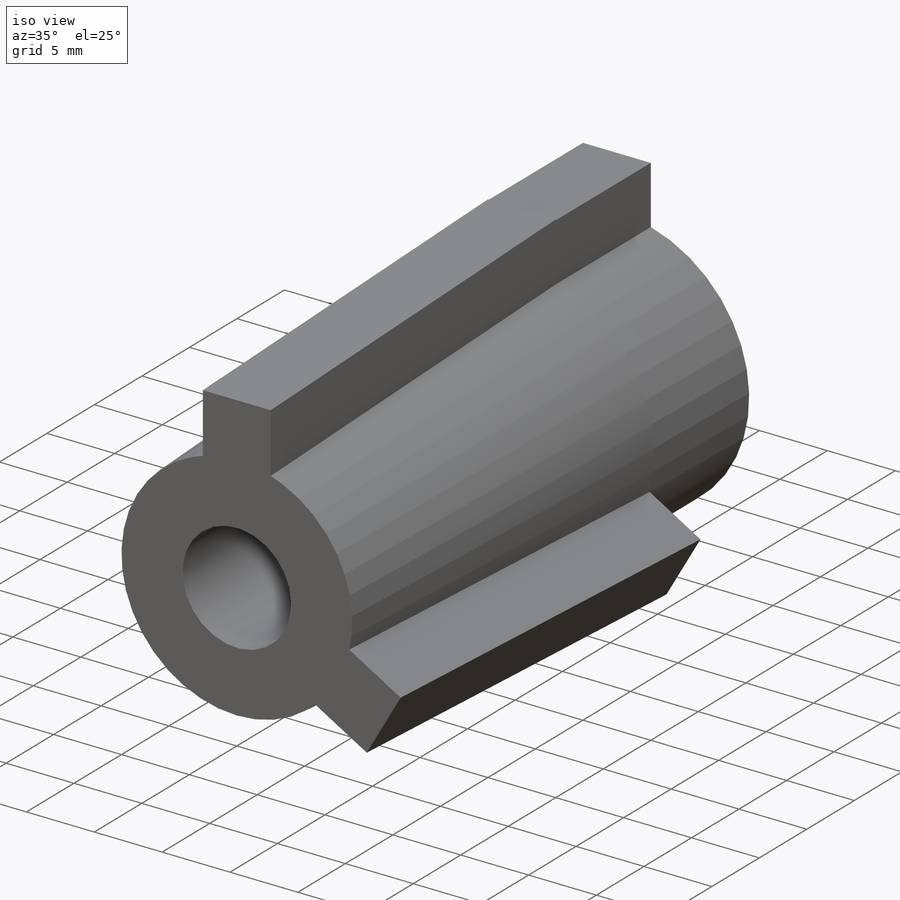
[diagram: iso view]
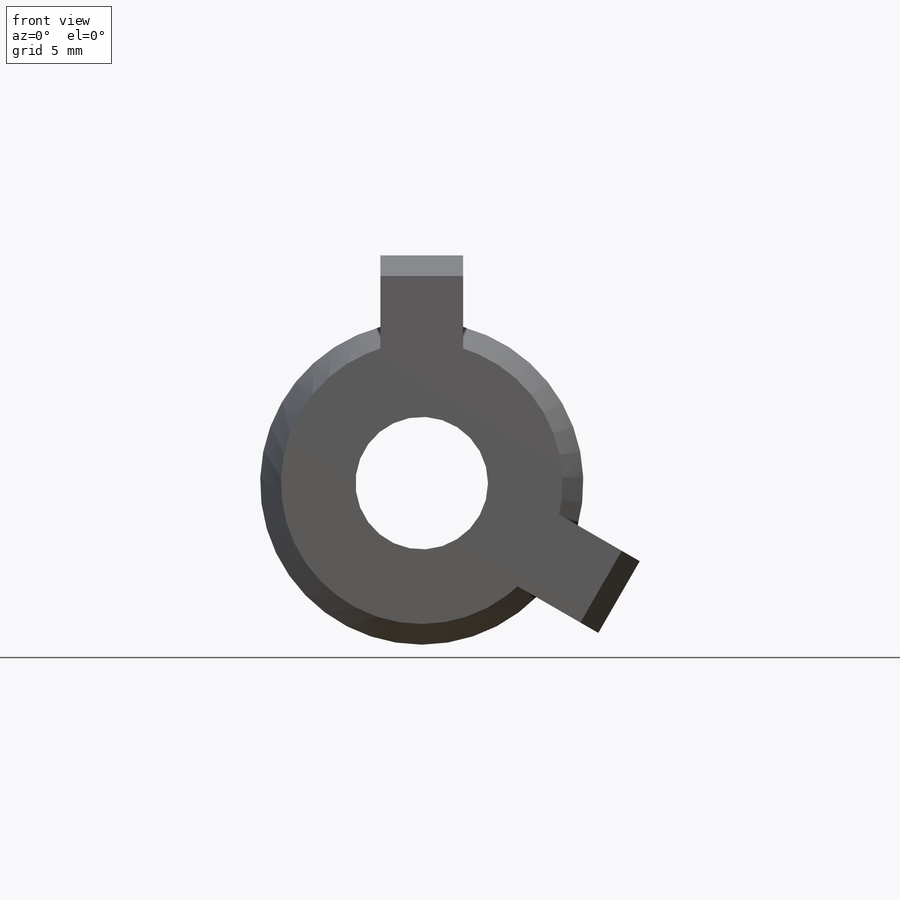
[diagram: front view]
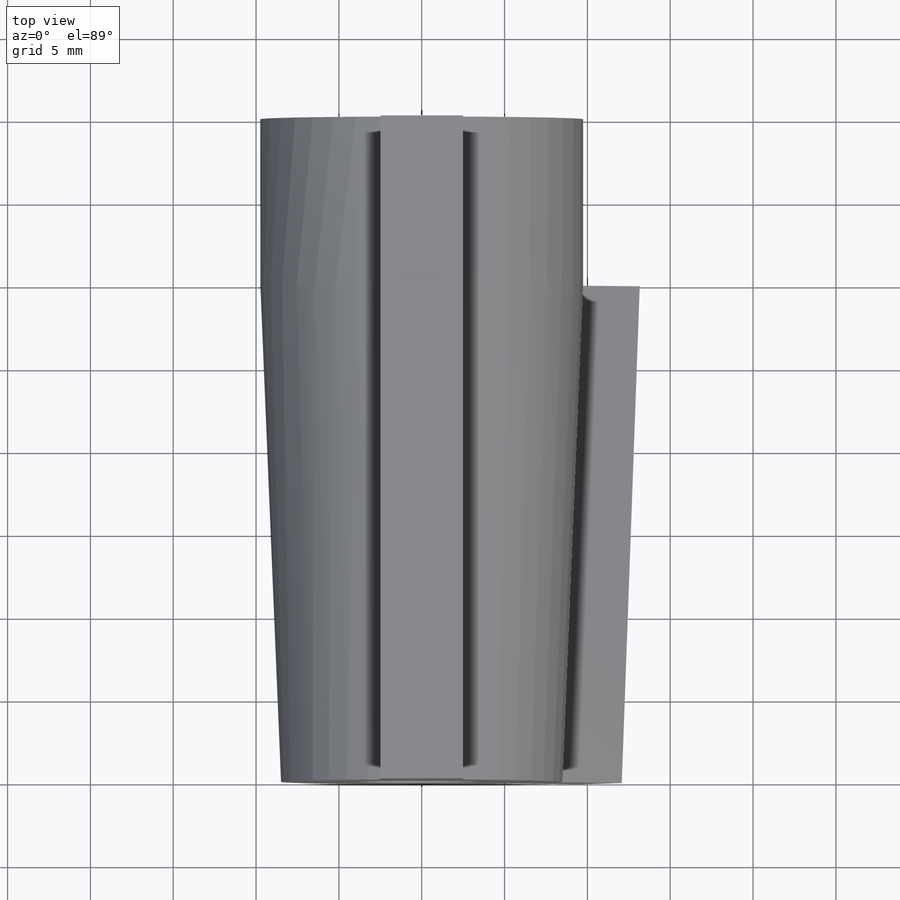
[diagram: top view]
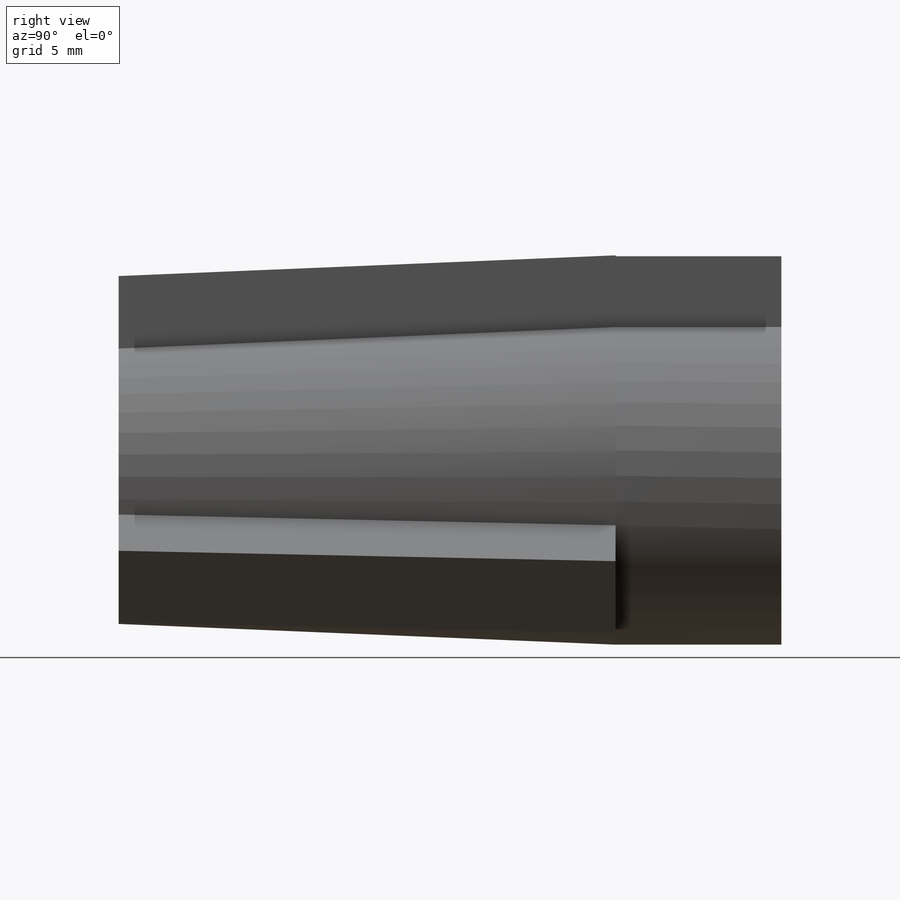
[diagram: right view]
SOLIDWORKS PART (.sldprt)
format: sldprt  version: not decoded by parser v0  size: 268,800 bytes
history: native  units: mm
features: sketch x6, extrude x4, material x1, plane x1, cut_extrude x1, pattern_circular x1 (+13 scaffold rows collapsed)
feature tree (27):
  scaffold x13  (default folders/planes/origin — collapsed)
  material  "Material <not specified>"
  sketch  "Sketch1"  dims[D1=19.5mm D2=8.0mm D3=17.0mm]
  extrude  "Boss-Extrude1"  Depth=30mm
  sketch  "Sketch2"  dims[D1=19.5mm D2=0.0mm]
  plane  "Plane1"  Offset=0mm
  extrude  "Boss-Extrude2"  Depth=10mm
  sketch  "Sketch4"  dims[D1=8.0mm]
  cut_extrude  "Cut-Extrude1"  Depth=40mm
  sketch  "Sketch5"  dims[D1=2.5mm D2=5.0mm D3=4.0mm]
  sketch  "Sketch6"  dims[D1=2.5mm D2=5.0mm D3=4.0mm]
  extrude  "Loft5"  [1 undecoded]
  pattern_circular  "CirPattern1"  Count=2 Angle=240deg
  sketch  "Sketch7"  dims[D1=2.5mm D2=2.5mm D3=4.0mm]
  extrude  "Boss-Extrude3"  Depth=10mm
decode coverage: 11 of 12 modeling features carry decoded parameters
note: 1 parameter value undecoded
note: suppression state not decoded; provenance and decode notes live in map.json
